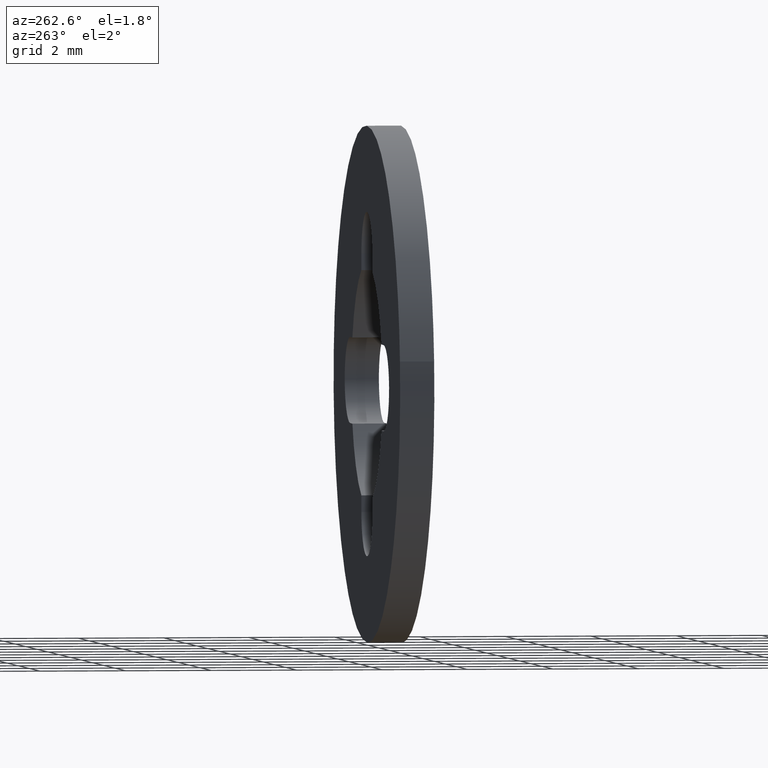
[diagram: clean part render]
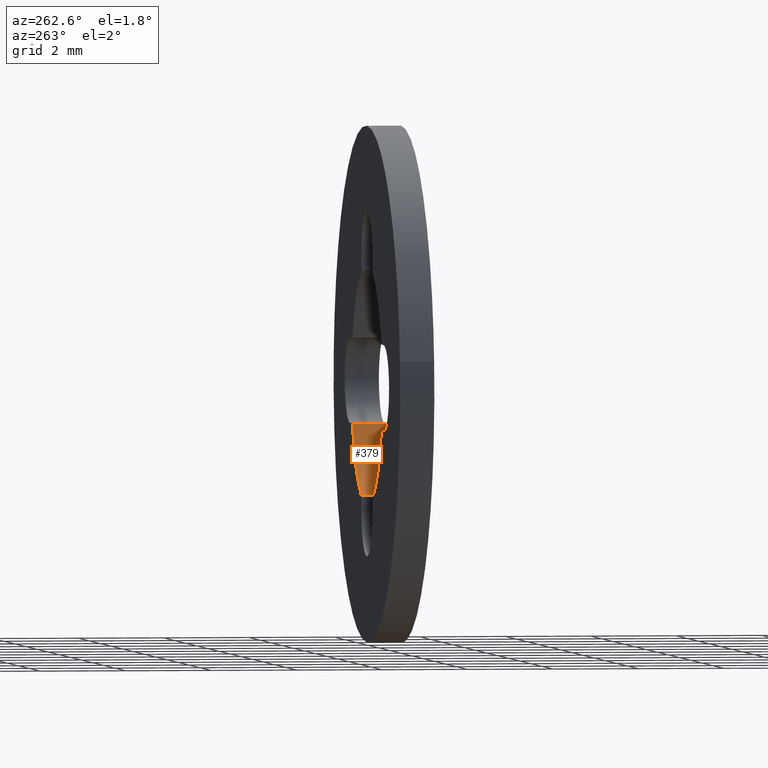
[diagram: same view with one face highlighted and labeled with its STEP entity id]
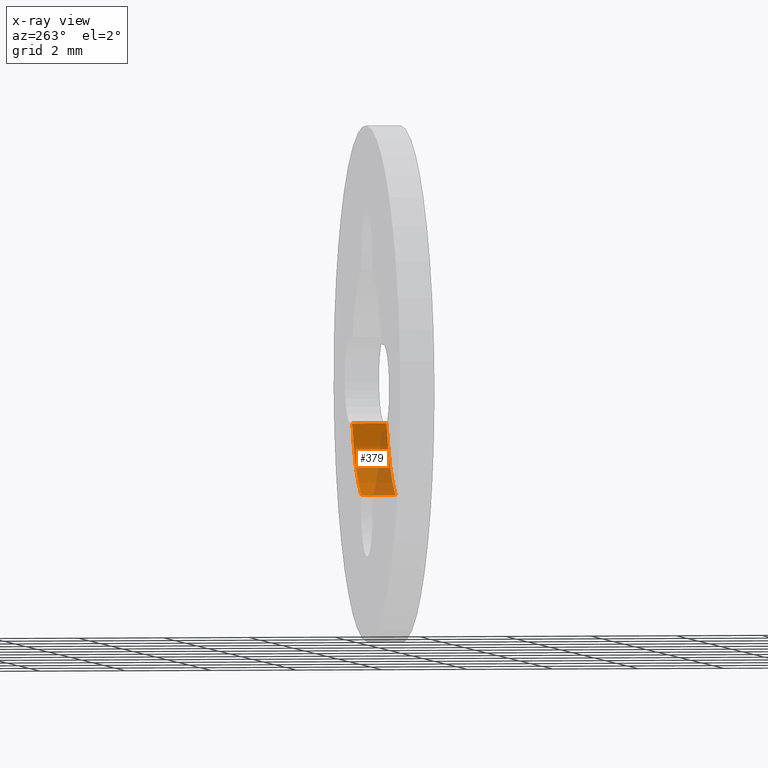
[diagram: x-ray of the same camera — body ghosted, the highlighted face saturated]
A machine part, auxiliary view. The second image highlights one B-rep face of the part: STEP entity #379.
The next image is the same camera in x-ray: the body ghosted, the highlighted face saturated — about 31% of this face is hidden behind the body in this view.
In plain terms, the highlighted face is a freeform B-spline surface patch.
Its self-contained STEP definition (entity closure, byte-faithful):
#304=CARTESIAN_POINT('',(2.615339366124400,0.0,-1.0));
#305=VERTEX_POINT('',#304);
#312=CARTESIAN_POINT('',(2.615339366124400,0.800000000000023,-1.0));
#313=VERTEX_POINT('',#312);
#319=CARTESIAN_POINT('',(2.615339366124400,0.800000000000023,-1.0));
#320=CARTESIAN_POINT('',(2.615339366124400,0.0,-1.0));
#321=QUASI_UNIFORM_CURVE('',1,(#319,#320),.UNSPECIFIED.,.F.,.U.);
#322=EDGE_CURVE('',#313,#305,#321,.T.);
#327=CARTESIAN_POINT('',(2.653595675513772,0.820000000000024,-0.893549098200318));
#328=CARTESIAN_POINT('',(2.653595675513772,-0.020500000000001,-0.893549098200318));
#329=CARTESIAN_POINT('',(2.210039401793527,0.820000000000024,-2.210789541016116));
#330=CARTESIAN_POINT('',(2.210039401793527,-0.020500000000001,-2.210789541016116));
#331=CARTESIAN_POINT('',(0.892648506975613,0.820000000000024,-2.653898762762853));
#332=CARTESIAN_POINT('',(0.892648506975613,-0.020500000000001,-2.653898762762853));
#340=(BOUNDED_SURFACE()B_SPLINE_SURFACE(1,2,((#327,#329,#331),(#328,#330,#332)),.UNSPECIFIED.,.F.,.F.,.U.)B_SPLINE_SURFACE_WITH_KNOTS((2,2),(3,3),(0.0,1.0),(0.0,2.626894719128478),.UNSPECIFIED.)GEOMETRIC_REPRESENTATION_ITEM()RATIONAL_B_SPLINE_SURFACE(((0.999851358034276,0.891683071967494,0.991167330352593),(0.999851358034276,0.891683071967494,0.991167330352593)))REPRESENTATION_ITEM('')SURFACE());
#341=CARTESIAN_POINT('',(1.000000000000018,0.0,-2.615339366124394));
#342=VERTEX_POINT('',#341);
#343=CARTESIAN_POINT('',(1.000000000000018,0.0,-2.615339366124397));
#344=CARTESIAN_POINT('',(2.168537779180710,0.0,-2.168537779180697));
#345=CARTESIAN_POINT('',(2.615339366124403,0.0,-1.000000000000002));
#353=(BOUNDED_CURVE()B_SPLINE_CURVE(2,(#343,#344,#345),.UNSPECIFIED.,.F.,.U.)CURVE()GEOMETRIC_REPRESENTATION_ITEM()QUASI_UNIFORM_CURVE()RATIONAL_B_SPLINE_CURVE((1.0,0.913011065027587,1.0))REPRESENTATION_ITEM(''));
#354=EDGE_CURVE('',#342,#305,#353,.T.);
#355=ORIENTED_EDGE('',*,*,#354,.T.);
#356=ORIENTED_EDGE('',*,*,#322,.F.);
#357=CARTESIAN_POINT('',(1.000000000000018,0.800000000000023,-2.615339366124394));
#358=VERTEX_POINT('',#357);
#359=CARTESIAN_POINT('',(1.000000000000018,0.800000000000023,-2.615339366124397));
#360=CARTESIAN_POINT('',(2.168537779180710,0.800000000000023,-2.168537779180697));
#361=CARTESIAN_POINT('',(2.615339366124403,0.800000000000023,-1.000000000000002));
#369=(BOUNDED_CURVE()B_SPLINE_CURVE(2,(#359,#360,#361),.UNSPECIFIED.,.F.,.U.)CURVE()GEOMETRIC_REPRESENTATION_ITEM()QUASI_UNIFORM_CURVE()RATIONAL_B_SPLINE_CURVE((1.0,0.913011065027587,1.0))REPRESENTATION_ITEM(''));
#370=EDGE_CURVE('',#358,#313,#369,.T.);
#371=ORIENTED_EDGE('',*,*,#370,.F.);
#372=CARTESIAN_POINT('',(1.000000000000018,0.800000000000023,-2.615339366124394));
#373=CARTESIAN_POINT('',(1.000000000000018,0.0,-2.615339366124394));
#374=QUASI_UNIFORM_CURVE('',1,(#372,#373),.UNSPECIFIED.,.F.,.U.);
#375=EDGE_CURVE('',#358,#342,#374,.T.);
#376=ORIENTED_EDGE('',*,*,#375,.T.);
#377=EDGE_LOOP('',(#355,#356,#371,#376));
#378=FACE_OUTER_BOUND('',#377,.T.);
#379=ADVANCED_FACE('',(#378),#340,.F.);